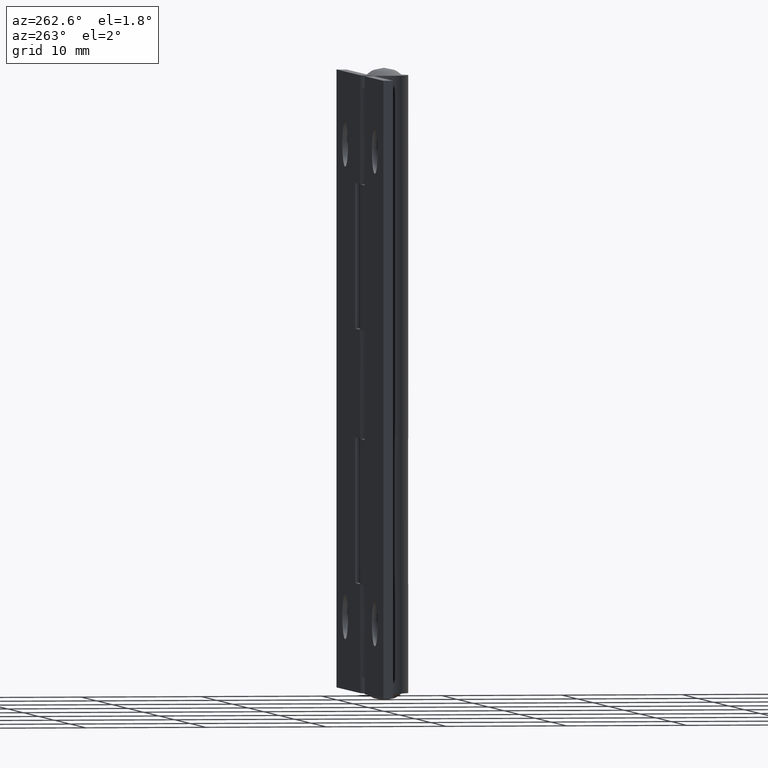
[diagram: clean part render]
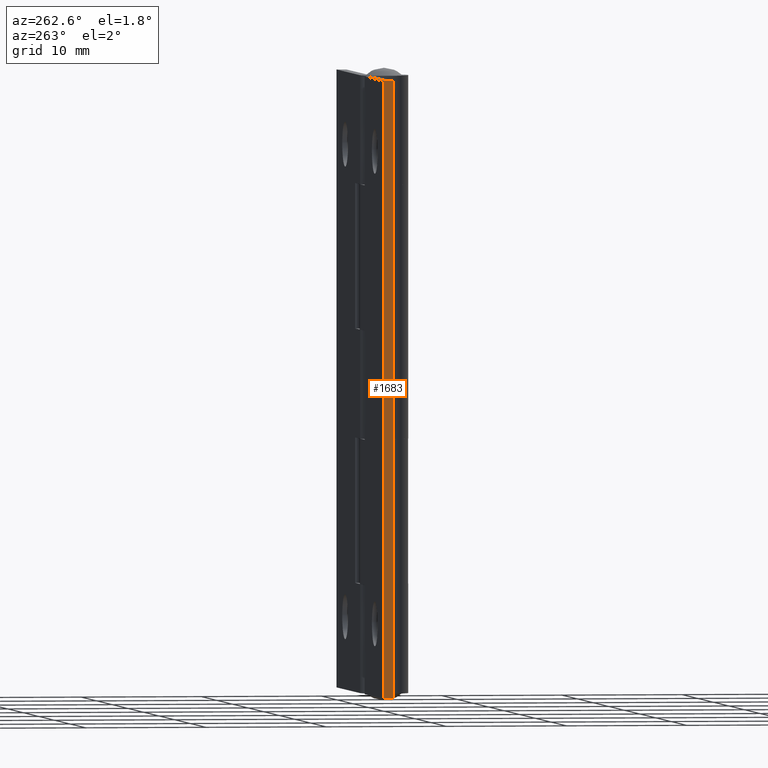
[diagram: same view with one face highlighted and labeled with its STEP entity id]
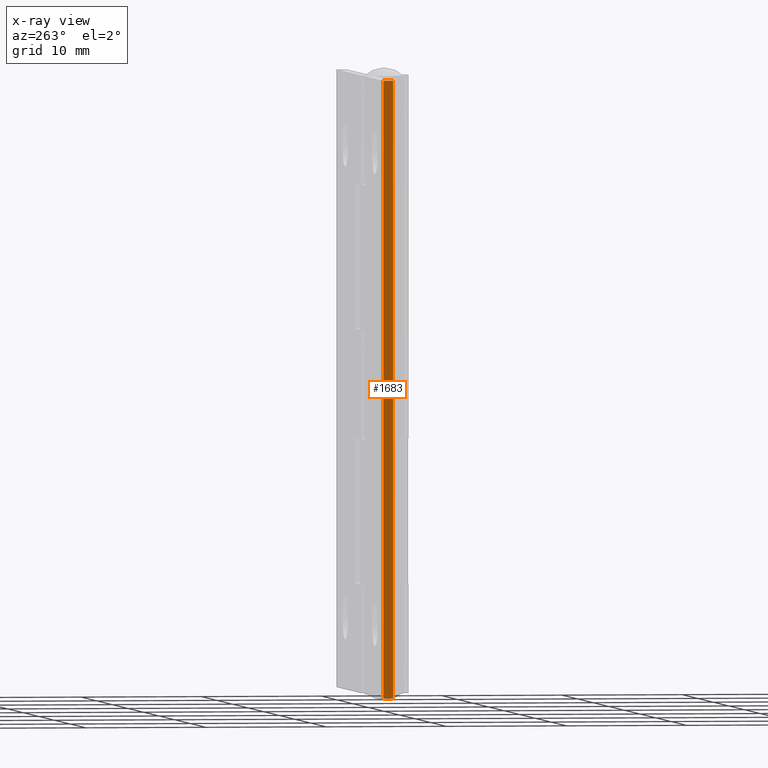
[diagram: x-ray of the same camera — body ghosted, the highlighted face saturated]
A machine part, auxiliary view. The second image highlights one B-rep face of the part: STEP entity #1683.
The next image is the same camera in x-ray: the body ghosted, the highlighted face saturated — about 0% of this face is hidden behind the body in this view.
In plain terms, the highlighted face is a freeform B-spline surface patch.
Its self-contained STEP definition (entity closure, byte-faithful):
#1261=CARTESIAN_POINT('',(-15.000000000011600,1.199999999999960,1.998401E-012));
#1262=VERTEX_POINT('',#1261);
#1317=CARTESIAN_POINT('',(-15.000000000011600,1.199999999999960,51.000000000001897));
#1318=VERTEX_POINT('',#1317);
#1324=CARTESIAN_POINT('',(-15.000000000011600,1.199999999999960,51.000000000001897));
#1325=CARTESIAN_POINT('',(-15.000000000011600,1.199999999999960,1.998401E-012));
#1326=QUASI_UNIFORM_CURVE('',1,(#1324,#1325),.UNSPECIFIED.,.F.,.U.);
#1327=EDGE_CURVE('',#1318,#1262,#1326,.T.);
#1631=CARTESIAN_POINT('',(-15.000000000011600,2.000000000017335,1.998401E-012));
#1632=VERTEX_POINT('',#1631);
#1633=CARTESIAN_POINT('',(-15.000000000011600,2.000000000017335,1.998401E-012));
#1634=CARTESIAN_POINT('',(-15.000000000011600,1.199999999999960,1.998401E-012));
#1635=QUASI_UNIFORM_CURVE('',1,(#1633,#1634),.UNSPECIFIED.,.F.,.U.);
#1636=EDGE_CURVE('',#1632,#1262,#1635,.T.);
#1653=CARTESIAN_POINT('',(-15.000000000011600,2.000000000017335,51.000000000001897));
#1654=VERTEX_POINT('',#1653);
#1660=CARTESIAN_POINT('',(-15.000000000011600,2.000000000017335,51.000000000001897));
#1661=CARTESIAN_POINT('',(-15.000000000011600,1.199999999999960,51.000000000001897));
#1662=QUASI_UNIFORM_CURVE('',1,(#1660,#1661),.UNSPECIFIED.,.F.,.U.);
#1663=EDGE_CURVE('',#1654,#1318,#1662,.T.);
#1668=CARTESIAN_POINT('',(-15.000000000011600,1.160040001549648,53.547449901154003));
#1669=CARTESIAN_POINT('',(-15.000000000011600,1.160040001549648,-2.547451269076701));
#1670=CARTESIAN_POINT('',(-15.000000000011600,2.039960019925320,53.547449901154003));
#1671=CARTESIAN_POINT('',(-15.000000000011600,2.039960019925320,-2.547451269076701));
#1672=B_SPLINE_SURFACE_WITH_KNOTS('',1,1,((#1668,#1670),(#1669,#1671)),.UNSPECIFIED.,.F.,.F.,.U.,(2,2),(2,2),(0.0,56.094901170230713),(0.041708334948495,0.958291687403247),.UNSPECIFIED.);
#1673=ORIENTED_EDGE('',*,*,#1636,.T.);
#1674=ORIENTED_EDGE('',*,*,#1327,.F.);
#1675=ORIENTED_EDGE('',*,*,#1663,.F.);
#1676=CARTESIAN_POINT('',(-15.000000000011600,2.000000000017335,51.000000000001897));
#1677=CARTESIAN_POINT('',(-15.000000000011600,2.000000000017335,1.998401E-012));
#1678=QUASI_UNIFORM_CURVE('',1,(#1676,#1677),.UNSPECIFIED.,.F.,.U.);
#1679=EDGE_CURVE('',#1654,#1632,#1678,.T.);
#1680=ORIENTED_EDGE('',*,*,#1679,.T.);
#1681=EDGE_LOOP('',(#1673,#1674,#1675,#1680));
#1682=FACE_OUTER_BOUND('',#1681,.T.);
#1683=ADVANCED_FACE('',(#1682),#1672,.F.);